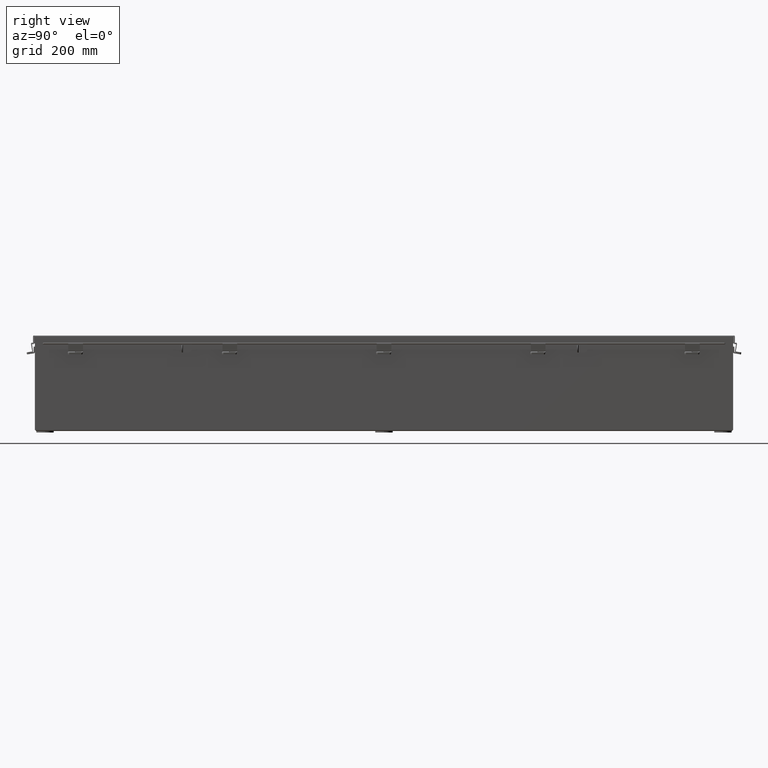
[diagram: clean part render]
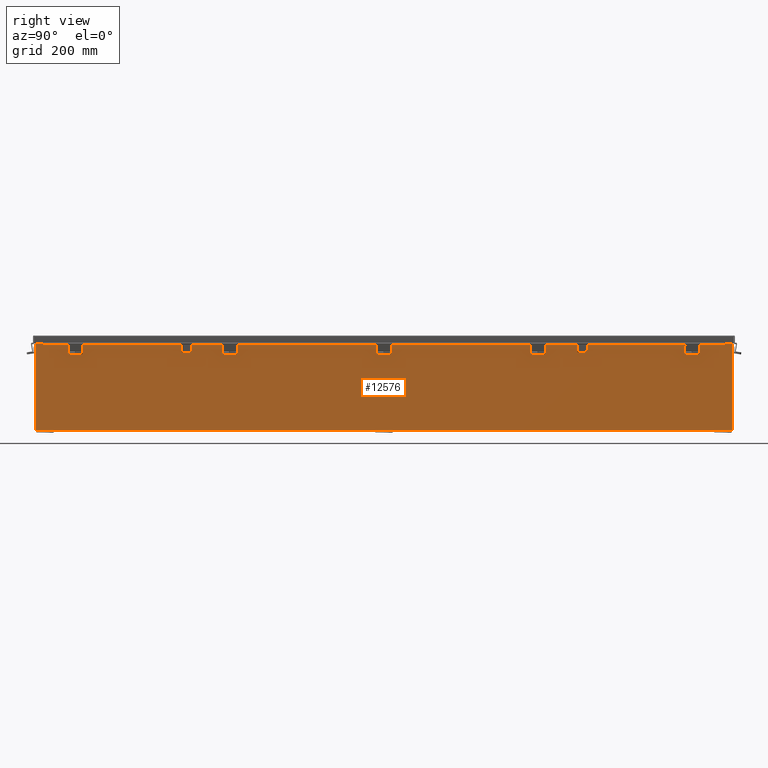
[diagram: same view with one face highlighted and labeled with its STEP entity id]
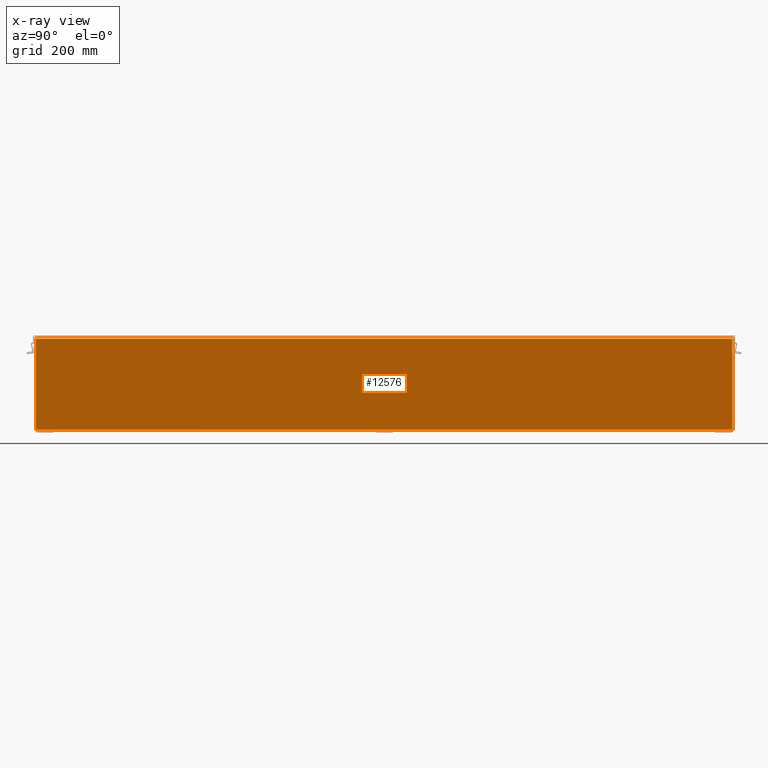
[diagram: x-ray of the same camera — body ghosted, the highlighted face saturated]
A machine part, right view. The second image highlights one B-rep face of the part: STEP entity #12576.
The next image is the same camera in x-ray: the body ghosted, the highlighted face saturated — about 0% of this face is hidden behind the body in this view.
In plain terms, the highlighted planar face has unit normal (-1, 0, 0).
Its self-contained STEP definition (entity closure, byte-faithful):
#1130 = CARTESIAN_POINT ( 'NONE',  ( 3.999999999999999600, 29.92530000000002100, 0.01299999999999820400 ) ) ;
#2005 = ORIENTED_EDGE ( 'NONE', *, *, #24598, .T. ) ;
#2130 = LINE ( 'NONE', #38615, #10017 ) ;
#2668 = CARTESIAN_POINT ( 'NONE',  ( 4.000000000000025800, 29.92530000000000400, 7.837599999999999200 ) ) ;
#3664 = VERTEX_POINT ( 'NONE', #1130 ) ;
#4009 = CARTESIAN_POINT ( 'NONE',  ( 4.000000000000025800, 29.92530000000000000, 7.837599999999999200 ) ) ;
#4795 = EDGE_LOOP ( 'NONE', ( #34265, #19370, #24867, #2005 ) ) ;
#8668 = CARTESIAN_POINT ( 'NONE',  ( 3.999999999999999600, 0.0000000000000000000, -1.417999849211356600E-014 ) ) ;
#8682 = DIRECTION ( 'NONE',  ( 9.530001147699521900E-032, -1.000000000000000000, 2.738667275179460900E-017 ) ) ;
#10017 = VECTOR ( 'NONE', #35522, 39.37007874015748100 ) ;
#12448 = AXIS2_PLACEMENT_3D ( 'NONE', #8668, #15441, #39020 ) ;
#12576 = ADVANCED_FACE ( 'NONE', ( #13685 ), #22040, .F. ) ;
#13685 = FACE_OUTER_BOUND ( 'NONE', #4795, .T. ) ;
#14897 = VECTOR ( 'NONE', #8682, 39.37007874015748100 ) ;
#15441 = DIRECTION ( 'NONE',  ( -1.000000000000000000, 0.0000000000000000000, 3.479795166820706300E-015 ) ) ;
#15625 = VERTEX_POINT ( 'NONE', #39905 ) ;
#15726 = DIRECTION ( 'NONE',  ( -3.479795166820706300E-015, 0.0000000000000000000, -1.000000000000000000 ) ) ;
#19115 = EDGE_CURVE ( 'NONE', #36522, #24928, #42055, .T. ) ;
#19370 = ORIENTED_EDGE ( 'NONE', *, *, #35709, .T. ) ;
#21681 = VECTOR ( 'NONE', #15726, 39.37007874015748100 ) ;
#22040 = PLANE ( 'NONE',  #12448 ) ;
#22464 = CARTESIAN_POINT ( 'NONE',  ( 3.999999999999999600, -29.92529999999998600, -1.417999849211356600E-014 ) ) ;
#23815 = CARTESIAN_POINT ( 'NONE',  ( 4.000000000000026600, -29.92529999999997900, 7.837599999999999200 ) ) ;
#24598 = EDGE_CURVE ( 'NONE', #3664, #36522, #2130, .T. ) ;
#24867 = ORIENTED_EDGE ( 'NONE', *, *, #40721, .F. ) ;
#24928 = VERTEX_POINT ( 'NONE', #23815 ) ;
#29587 = DIRECTION ( 'NONE',  ( -0.0000000000000000000, -1.000000000000000000, -0.0000000000000000000 ) ) ;
#34265 = ORIENTED_EDGE ( 'NONE', *, *, #19115, .T. ) ;
#35522 = DIRECTION ( 'NONE',  ( 3.479795166820706300E-015, -1.113534453382626100E-015, 1.000000000000000000 ) ) ;
#35709 = EDGE_CURVE ( 'NONE', #24928, #15625, #39622, .T. ) ;
#36522 = VERTEX_POINT ( 'NONE', #4009 ) ;
#38615 = CARTESIAN_POINT ( 'NONE',  ( 3.999999999999999600, 29.92530000000002100, 1.914001000561024500E-014 ) ) ;
#39020 = DIRECTION ( 'NONE',  ( 3.479795166820706300E-015, 0.0000000000000000000, 1.000000000000000000 ) ) ;
#39030 = CARTESIAN_POINT ( 'NONE',  ( 3.999999999999999600, -29.92529999999998600, 0.01299999999999984300 ) ) ;
#39622 = LINE ( 'NONE', #22464, #21681 ) ;
#39905 = CARTESIAN_POINT ( 'NONE',  ( 3.999999999999999600, -29.92529999999998600, 0.01299999999999902300 ) ) ;
#40721 = EDGE_CURVE ( 'NONE', #3664, #15625, #41743, .T. ) ;
#41743 = LINE ( 'NONE', #39030, #14897 ) ;
#42055 = LINE ( 'NONE', #2668, #43095 ) ;
#43095 = VECTOR ( 'NONE', #29587, 39.37007874015748100 ) ;